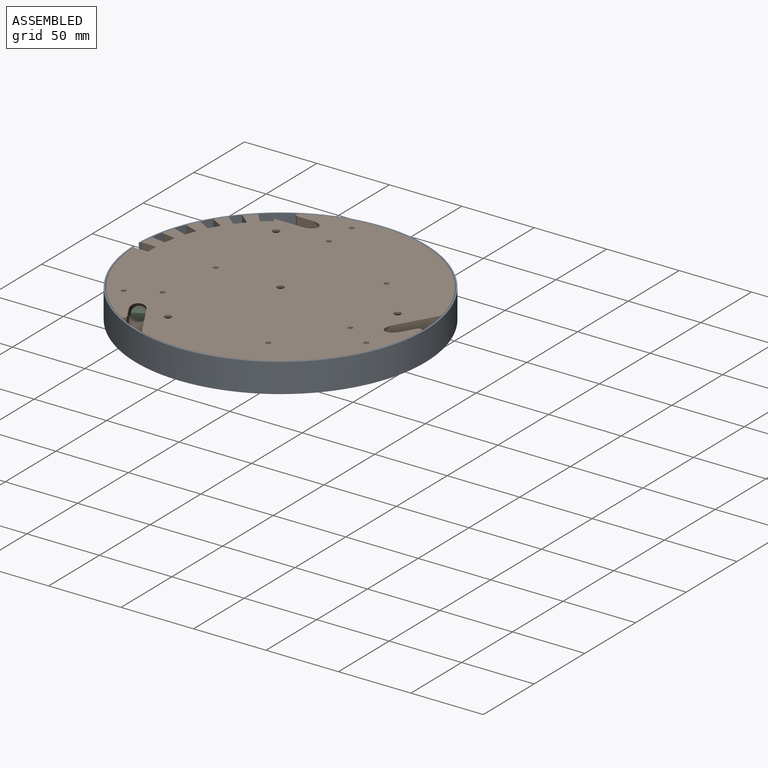
[diagram: assembled view]
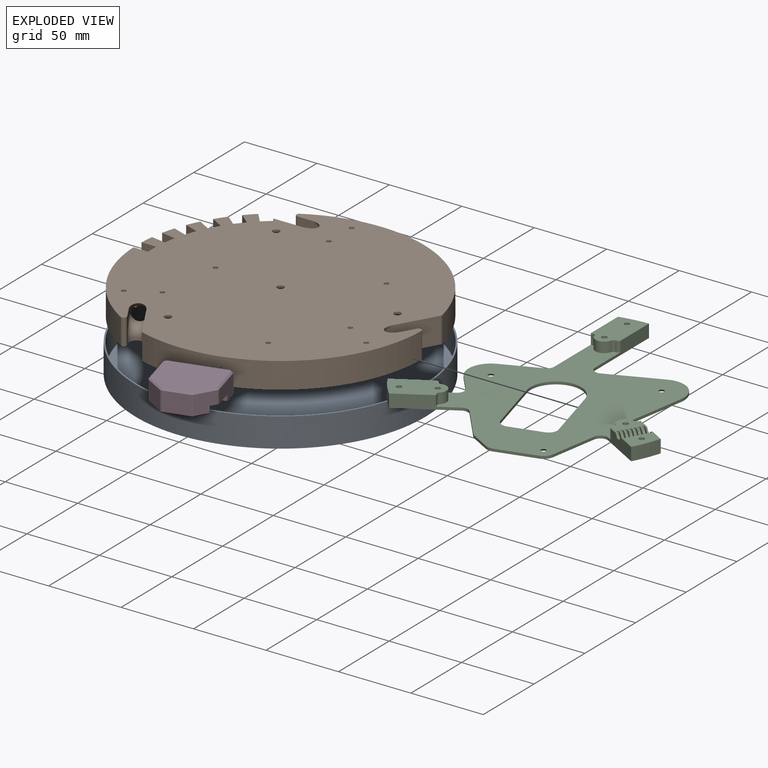
[diagram: exploded view]
GUIDED TOUR — FREECAD ASSEMBLY "CircularBase"

This assembly has 4 components, labeled P0..P3 below (a component is one placed body or linked part; the same part can appear more than once), held together by 0 modeled joints plus 5 derived contact edges. A joint is a constraint between two components; its type names the relative motion it leaves free:
  CONTACT — a derived adjacency edge — the two components touch in the source model (clearance under 2% of the assembly's diagonal); it is measured from the geometry, not a modeled constraint.
Axis/direction vectors are unit vectors and 'through' points are millimeter coordinates, both in the assembly's world frame.

MATES
  1. CONTACT "contact_0_1": P0 <-> P1, contact direction (0.000, 0.000, 1.000) through (81.83, -13.75, -18.05) mm (derived from contact, not a modeled constraint)
  2. CONTACT "contact_0_2": P0 <-> P2, contact direction (0.000, 0.000, 1.000) through (-82.91, -50.74, -18.05) mm (derived from contact, not a modeled constraint)
  3. CONTACT "contact_1_2": P1 <-> P2, contact direction (1.000, 0.000, 0.000) through (-54.24, -37.77, -9.00) mm (derived from contact, not a modeled constraint)
  4. CONTACT "contact_1_3": P1 <-> P3, contact direction (0.191, -0.981, 0.047) through (28.45, -69.68, -15.83) mm (derived from contact, not a modeled constraint)
  5. CONTACT "contact_2_3": P2 <-> P3, contact direction (0.000, 0.000, 1.000) through (24.28, -44.42, -15.70) mm (derived from contact, not a modeled constraint)

ASSEMBLY ORDER
  1. P1 — the base component [order heuristic]
  2. P0 [order heuristic]
  3. P2 [order heuristic]
  4. P3 [order heuristic]
Order-tag legend:
  [order heuristic] — this assembly is geometrically interlocked (no collision-free removal order exists), so components are listed in mate-graph order; insertion feasibility is not verified.

Of the 4 components, 4 carry a construction recipe — the FreeCAD feature program (sketches with constraints, then the solid features that consume them) that regenerates the part from scratch, quoted from this document or from the linked companion document it references; the rest are supplied as boundary geometry only. The tour below walks the components in assembly order: each is shown spotlighted twice — in the assembled view, then in the exploded view, where a leader line traces a displaced component back to its assembled socket (components that stay in place when exploded have no leader line; saturated green if recipe-attached, orange if geometry-only; every other component desaturated gray) — followed by its recipe or geometry summary and the mates that hold it.
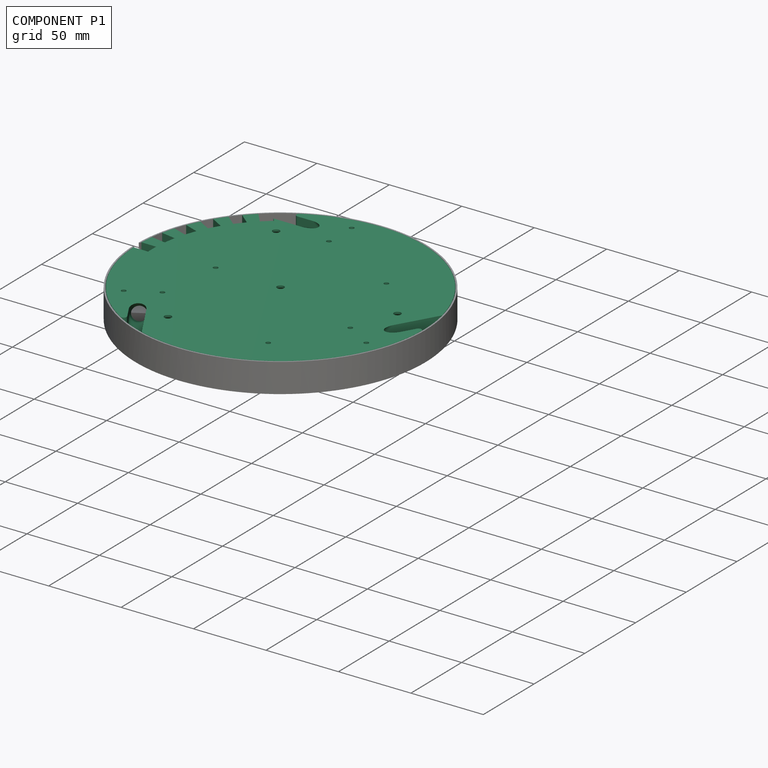
[diagram: component P1 — assembled]
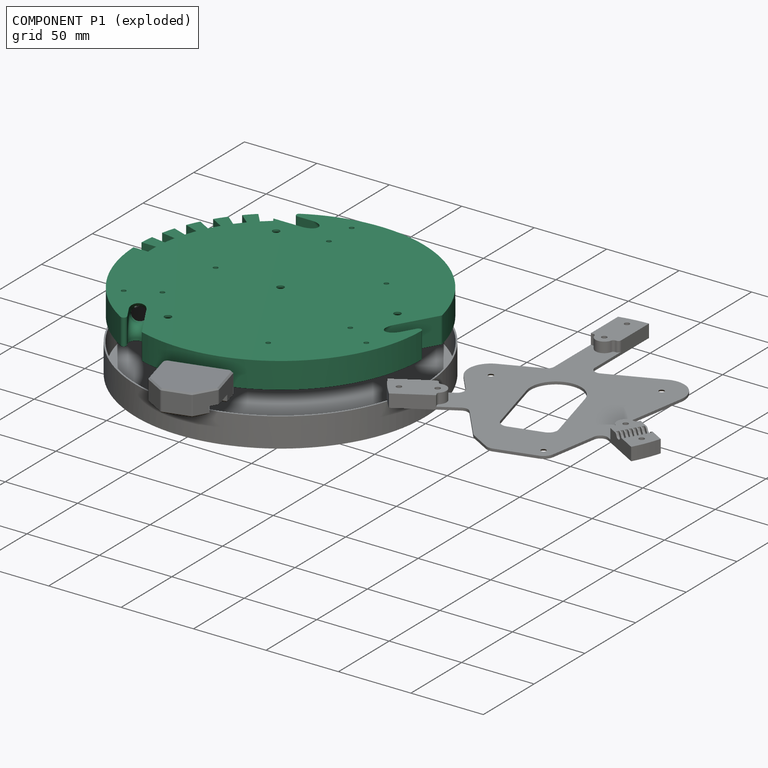
[diagram: component P1 — exploded]
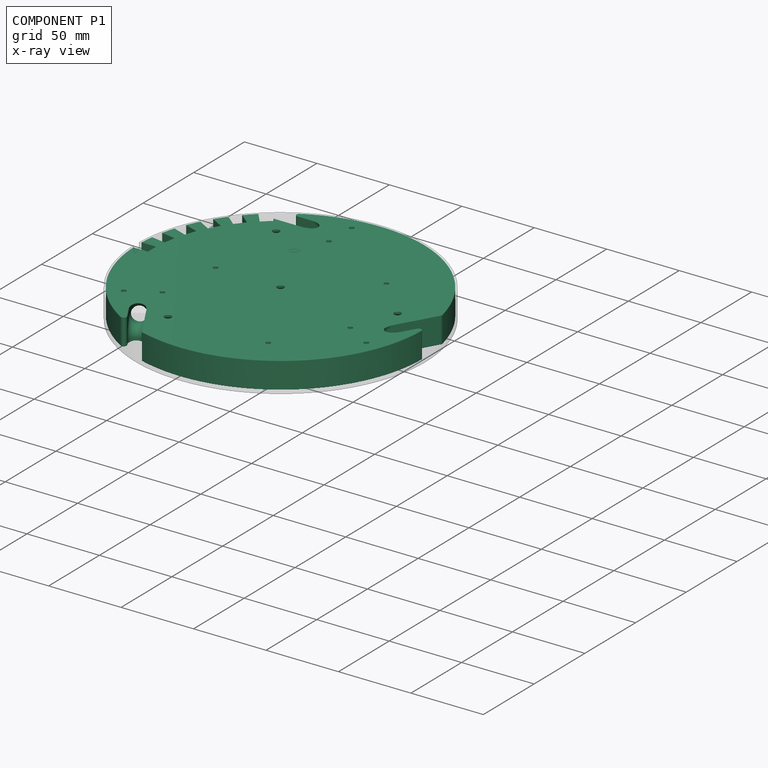
[diagram: component P1 — x-ray view]
COMPONENT P1 — recipe-attached ("Base", modeled in this document).
Held by: resting contact with P0 (derived edge); resting contact with P2 (derived edge); resting contact with P3 (derived edge).
Construction recipe (the document's own serialized feature program — sketch geometry with constraints, then the solid features built on it; lengths are millimeters unless a unit is written):

FEATURE [Sketcher::SketchObject] Sketch012
  ArcFitTolerance = 1e-06
  AttachmentSupport = -> [XY_Plane004]
  FullyConstrained = true
  MakeInternals = false
  MapMode = 5
  sketch-geometry (1):
    g0: Circle CenterX=0 CenterY=0 CenterZ=0 NormalX=0 NormalY=0 NormalZ=1 AngleXU=0 Radius=98.8
  constraints (2):
    c: Diameter(g0) = 197.6
    c: Coincident(g0,g-1)
FEATURE [PartDesign::Pad] Pad009
  Direction = (0,0,1)
  Length = 4
  Length2 = 10
  Profile = -> Sketch012
  ReferenceAxis = -> Sketch012 [N_Axis]
  Refine = true
  Reversed = true
  Suppressed = false
  Type = 0
FEATURE [Sketcher::SketchObject] Sketch013
  ArcFitTolerance = 1e-06
  AttachmentOffset = pos=(90,0,0) rot=(0,1,0;1.0472rad)
  AttachmentSupport = -> [XZ_Plane004]
  FullyConstrained = false
  MakeInternals = false
  MapMode = 5
  Placement = pos=(90,0,0) rot=(0.774597,0.447214,0.447214;1.82348rad)
  expr: Constraints[8] = 5 mm
  expr: Constraints[9] = 4 mm + 5 mm
  sketch-geometry (12):
    g0: LineSegment StartX=0 StartY=-18 StartZ=0 EndX=0 EndY=-16 EndZ=0
    g1: ArcOfCircle CenterX=-11 CenterY=-16 CenterZ=0 NormalX=0 NormalY=0 NormalZ=1 AngleXU=0 Radius=11 StartAngle=0 EndAngle=2.24086
    g2: ArcOfCircle CenterX=-22.4891 CenterY=-1.5 CenterZ=0 NormalX=0 NormalY=0 NormalZ=1 AngleXU=0 Radius=7.5 StartAngle=4.71239 EndAngle=5.38245
    g3: LineSegment StartX=-22.4891 StartY=-9 StartZ=0 EndX=-42.4891 EndY=-9 EndZ=0
    g4: LineSegment StartX=0 StartY=-18 StartZ=0 EndX=36.1215 EndY=-18 EndZ=0
    g5: LineSegment StartX=36.1215 StartY=-18 StartZ=0 EndX=35.1191 EndY=0 EndZ=0
    g6: LineSegment StartX=35.1191 StartY=0 StartZ=0 EndX=-8.51939 EndY=-2.7e-15 EndZ=0
    g7: LineSegment StartX=-17.8314 StartY=-7.37838 StartZ=0 EndX=-8.51939 EndY=-2.7e-15 EndZ=0
    g8: LineSegment StartX=-42.4891 StartY=-18 StartZ=0 EndX=-42.4891 EndY=-10 EndZ=0
    g9: LineSegment StartX=-22 StartY=-10 StartZ=0 EndX=-42.4891 EndY=-10 EndZ=0
    g10: LineSegment StartX=-22 StartY=-10 StartZ=0 EndX=-22 EndY=-18 EndZ=0
    g11: LineSegment StartX=-22 StartY=-18 StartZ=0 EndX=-42.4891 EndY=-18 EndZ=0
  constraints (32):
    c: Vertical(g0)
    c: Horizontal(g3)
    c: Distance(g0,g0) = 2
    c: Tangent(g3,g2) = 1.5708
    c: DistanceX(g3,g3) = 20
    c: DistanceY(g0,g-1) = 18
    c: PointOnObject(g0,g-2)
    c: Diameter(g2) = 15
    c: Distance(g1,g-1) = 5
    c: DistanceY(g0,g3) = 9
    c: Tangent(g0,g1) = -1.5708
    c: Tangent(g2,g1) = 1.5708
    c: Coincident(g4,g0)
    c: Horizontal(g4)
    c: Coincident(g5,g4)
    c: PointOnObject(g5,g-1)
    c: Coincident(g6,g5)
    c: PointOnObject(g6,g-1)
    c: Coincident(g7,g6)
    c: Tangent(g7,g1) = 1.5708
    c: Vertical(g8)
    c: PointOnObject(g3,g8)
    c: DistanceY(g8,g3) = 1
    c: Coincident(g9,g8)
    c: Horizontal(g9)
    c: Coincident(g11,g10)
    c: Coincident(g11,g8)
    c: Horizontal(g11)
    c: Vertical(g10)
    c: PointOnObject(g0,g11)
    c: Coincident(g9,g10)
    c: DistanceX(g10,g0) = 22
FEATURE [Sketcher::SketchObject] Sketch014
  ArcFitTolerance = 1e-06
  AttachmentSupport = -> [Pad009]
  ExternalGeometry = -> [Pad009,Sketch013]
  FullyConstrained = true
  MakeInternals = false
  MapMode = 5
  Placement = pos=(0,0,-4) rot=(1,0,0;3.14159rad)
  sketch-geometry (13):
    g0: LineSegment StartX=58.3631 StartY=30.7967 StartZ=0 EndX=60.4854 EndY=27.1208 EndZ=0
    g1: LineSegment StartX=84.1922 StartY=45.7091 StartZ=0 EndX=58.3631 EndY=30.7967 EndZ=0
    g2: ArcOfCircle CenterX=0 CenterY=0 CenterZ=0 NormalX=0 NormalY=0 NormalZ=1 AngleXU=0 Radius=95.8 StartAngle=0.497386 EndAngle=1.80639
    g3: ArcOfCircle CenterX=63.4854 CenterY=21.9246 CenterZ=0 NormalX=0 NormalY=0 NormalZ=1 AngleXU=0 Radius=6 StartAngle=2.0944 EndAngle=5.23599
    g4: LineSegment StartX=66.4854 StartY=16.7285 StartZ=0 EndX=93.8944 EndY=-30.7453 EndZ=0
    g5: Circle [constr] CenterX=63.4854 CenterY=21.9246 CenterZ=0 NormalX=0 NormalY=0 NormalZ=1 AngleXU=0 Radius=1.5
    g6: LineSegment [constr] StartX=73.8777 StartY=27.9246 StartZ=0 EndX=63.4854 EndY=21.9246 EndZ=0
    g7: ArcOfCircle CenterX=0 CenterY=0 CenterZ=0 NormalX=0 NormalY=0 NormalZ=1 AngleXU=0 Radius=98.8 StartAngle=5.96674 EndAngle=8.06114
    g8: LineSegment StartX=-20.321 StartY=96.6876 StartZ=0 EndX=-22.3613 EndY=93.1537 EndZ=0
    g9: LineSegment [constr] StartX=0 StartY=0 StartZ=0 EndX=93.8944 EndY=-30.7453 EndZ=0
    g10: LineSegment [constr] StartX=0 StartY=0 StartZ=0 EndX=-20.321 EndY=96.6876 EndZ=0
    g11: LineSegment [constr] StartX=0 StartY=0 StartZ=0 EndX=58.3631 EndY=30.7967 EndZ=0
    g12: LineSegment [constr] StartX=0 StartY=0 StartZ=0 EndX=-55.8523 EndY=35.1456 EndZ=0
  constraints (36):
    c: Coincident(g1,g0)
    c: Perpendicular(g-4,g1)
    c: Perpendicular(g0,g1)
    c: Coincident(g1,g2)
    c: Coincident(g2,g-1)
    c: PointOnObject(g-5,g1)
    c: Distance(g0,g-5) = 12
    c: PointOnObject(g3,g0)
    c: PointOnObject(g3,g0)
    c: Coincident(g3,g0)
    c: Coincident(g4,g3)
    c: Perpendicular(g3,g4)
    c: Radius(g3) = 6
    c: Coincident(g5,g3)
    c: Diameter(g5) = 3
    c: Symmetric(g-5,g-5,g6)
    c: Coincident(g6,g3)
    c: Perpendicular(g-5,g6)
    c: Coincident(g7,g2)
    c: Coincident(g7,g4)
    c: PointOnObject(g4,g-3)
    c: Coincident(g8,g7)
    c: Coincident(g8,g2)
    c: Coincident(g9,g2)
    c: Coincident(g9,g4)
    c: Angle(g4,g9) = 0.730755  'Reference'
    c: Coincident(g10,g2)
    c: Coincident(g10,g7)
    c: Angle(g9,g10) = 2.0944
    c: Distance(g1,g-3) = 3
    c: Coincident(g11,g2)
    c: Coincident(g11,g0)
    c: Coincident(g12,g2)
    c: Angle(g11,g12) = 2.0944
    c: Equal(g11,g12)
    c: PointOnObject(g12,g8)
FEATURE [PartDesign::Pad] Pad010
  BaseFeature = -> Pad009
  Direction = (0,0,-1)
  Length = 14
  Length2 = 10
  Profile = -> Sketch014
  ReferenceAxis = -> Sketch014 [N_Axis]
  Refine = true
  Suppressed = false
  Type = 0
  UpToShape = -> [Sketch013]
FEATURE [Sketcher::SketchObject] Sketch015
  ArcFitTolerance = 1e-06
  AttachmentSupport = -> [Pad010]
  ExternalGeometry = -> [Sketch013]
  FullyConstrained = true
  MakeInternals = false
  MapMode = 5
  Placement = pos=(1.25544,2.17448,0) rot=(0.935113,-0.250563,-0.250563;1.63783rad)
  sketch-geometry (1):
    g0: Circle CenterX=77.9423 CenterY=-9 CenterZ=0 NormalX=0 NormalY=0 NormalZ=1 AngleXU=0 Radius=5
  constraints (2):
    c: Coincident(g0,g-3)
    c: Diameter(g0) = 10
FEATURE [PartDesign::SubtractivePipe] SubtractivePipe004
  AuxilleryCurvelinear = true
  AuxillerySpineTangent = false
  BaseFeature = -> Pad010
  Binormal = (0,0,0)
  Mode = 0
  Profile = -> Sketch015
  Refine = true
  Spine = -> Sketch013 [Edge8,Edge7,Edge1]
  SpineTangent = false
  Suppressed = false
  Transformation = 0
  Transition = 0
FEATURE [PartDesign::SubtractivePipe] SubtractivePipe005
  AuxilleryCurvelinear = true
  AuxillerySpineTangent = false
  BaseFeature = -> SubtractivePipe004
  Binormal = (0,0,0)
  Mode = 0
  Profile = -> Sketch015
  Refine = true
  Spine = -> Sketch013 [Edge8,Edge7,Edge6,Edge5]
  SpineTangent = false
  Suppressed = false
  Transformation = 0
  Transition = 0
FEATURE [PartDesign::Pocket] Pocket019
  BaseFeature = -> SubtractivePipe005
  Direction = (-0.866025,0.5,-1e-16)
  Length = 10
  Length2 = 5
  Midplane = true
  Profile = -> Sketch013 [Edge1,Edge6,Edge2,Edge5,Edge4,Edge3]
  ReferenceAxis = -> Sketch013 [N_Axis]
  Refine = true
  Suppressed = false
  Type = 0
  expr: Length = 10
FEATURE [Sketcher::SketchObject] Sketch019
  ArcFitTolerance = 1e-06
  AttachmentSupport = -> [Pocket019]
  ExternalGeometry = -> [Pocket019]
  FullyConstrained = true
  MakeInternals = false
  MapMode = 5
  Placement = pos=(0,0,-18) rot=(1,0,0;3.14159rad)
  sketch-geometry (6):
    g0: LineSegment StartX=58.3631 StartY=30.7967 StartZ=0 EndX=84.1922 EndY=45.7091 EndZ=0
    g1: LineSegment StartX=68.3631 StartY=13.4762 StartZ=0 EndX=91.8977 EndY=27.0638 EndZ=0
    g2: ArcOfCircle CenterX=0 CenterY=0 CenterZ=0 NormalX=0 NormalY=0 NormalZ=1 AngleXU=0 Radius=95.8 StartAngle=0.286403 EndAngle=0.497386
    g3: ArcOfCircle CenterX=63.4854 CenterY=21.9246 CenterZ=0 NormalX=0 NormalY=0 NormalZ=1 AngleXU=0 Radius=6 StartAngle=2.09439 EndAngle=5.23599
    g4: LineSegment StartX=58.3631 StartY=30.7967 StartZ=0 EndX=60.4854 EndY=27.1208 EndZ=0
    g5: LineSegment StartX=66.4854 StartY=16.7285 StartZ=0 EndX=68.3631 EndY=13.4762 EndZ=0
  constraints (15):
    c: Coincident(g2,g-1)
    c: Coincident(g2,g1)
    c: Coincident(g2,g0)
    c: Coincident(g4,g0)
    c: Coincident(g4,g3)
    c: Coincident(g5,g3)
    c: Coincident(g5,g1)
    c: Coincident(g0,g-4)
    c: Coincident(g3,g-5)
    c: Coincident(g0,g-4)
    c: Coincident(g3,g-6)
    c: PointOnObject(g1,g-6)
    c: Equal(g-5,g3)
    c: PointOnObject(g-7,g1)
    c: PointOnObject(g-7,g1)
FEATURE [PartDesign::Pocket] Pocket
  BaseFeature = -> Pocket019
  Direction = (0,0,1)
  Length = 9
  Length2 = 5
  Profile = -> Sketch019
  ReferenceAxis = -> Sketch019 [N_Axis]
  Refine = true
  Suppressed = false
  Type = 0
  expr: Length = 4 mm + 5 mm
FEATURE [Sketcher::SketchObject] Sketch018
  ArcFitTolerance = 1e-06
  AttachmentSupport = -> [Pocket]
  ExternalGeometry = -> [Pocket]
  FullyConstrained = true
  MakeInternals = false
  MapMode = 5
  Placement = pos=(0,0,-4) rot=(1,0,0;3.14159rad)
  sketch-geometry (3):
    g0: LineSegment [constr] StartX=94.3301 StartY=2.5 StartZ=0 EndX=74.4115 EndY=-9 EndZ=0
    g1: Circle CenterX=74.4115 CenterY=-9 CenterZ=0 NormalX=0 NormalY=0 NormalZ=1 AngleXU=0 Radius=6
    g2: Circle CenterX=0 CenterY=0 CenterZ=0 NormalX=0 NormalY=0 NormalZ=1 AngleXU=0 Radius=6
  constraints (7):
    c: Diameter(g1) = 12
    c: Coincident(g1,g0)
    c: Coincident(g0,g-3)
    c: PointOnObject(g-3,g0)
    c: Coincident(g2,g-1)
    c: Equal(g2,g1)
    c: Tangent(g1,g-4)
FEATURE [Sketcher::SketchObject] Sketch020
  ArcFitTolerance = 1e-06
  AttachmentSupport = -> [Pocket]
  ExternalGeometry = -> [Pocket]
  FullyConstrained = false
  MakeInternals = false
  MapMode = 5
  Placement = pos=(0,0,-9) rot=(1,0,0;3.14159rad)
  sketch-geometry (5):
    g0: GeomPoint X=68.4685 Y=25.2665 Z=0
    g1: GeomPoint X=78.0856 Y=30.6364 Z=0
    g2: LineSegment [constr] StartX=78.0856 StartY=30.6364 StartZ=0 EndX=82.4157 EndY=33.1364 EndZ=0
    g3: Circle CenterX=63.4854 CenterY=21.9246 CenterZ=0 NormalX=0 NormalY=0 NormalZ=1 AngleXU=0 Radius=1.5
    g4: Circle CenterX=82.4157 CenterY=33.1364 CenterZ=0 NormalX=0 NormalY=0 NormalZ=1 AngleXU=0 Radius=1.5
  constraints (7):
    c: Coincident(g2,g1)
    c: Coincident(g4,g2)
    c: Equal(g4,g3)
    c: Symmetric(g-3,g-3,g1)
    c: Perpendicular(g-3,g2)
    c: Coincident(g-4,g3)
    c: Distance(g2,g2) = 5
FEATURE [PartDesign::Hole] Hole
  BaseFeature = -> Pocket
  CustomThreadClearance = 0
  Depth = 565.656
  DepthType = 1
  Diameter = 3.2
  DrillForDepth = false
  DrillPoint = 1
  DrillPointAngle = 118
  HoleCutCountersinkAngle = 90
  HoleCutCustomValues = false
  HoleCutDepth = 0
  HoleCutDiameter = 6.1
  HoleCutType = 0
  ModelThread = false
  Profile = -> Sketch020
  Refine = true
  Suppressed = false
  Tapered = false
  TaperedAngle = 90
  ThreadClass = 0
  ThreadDepth = 565.656
  ThreadDepthType = 0
  ThreadDirection = 0
  ThreadFit = 1
  ThreadSize = 9
  ThreadType = 1
  Threaded = false
  UseCustomThreadClearance = false
FEATURE [Sketcher::SketchObject] Sketch028
  ArcFitTolerance = 1e-06
  AttachmentOffset = pos=(0,2,-100) rot=(1,0,0;0.174533rad)
  AttachmentSupport = -> [YZ_Plane004]
  FullyConstrained = true
  MakeInternals = false
  MapMode = 5
  Placement = pos=(-100,0,2) rot=(0.60812,0.60812,0.510274;2.19793rad)
  sketch-geometry (4):
    g0: LineSegment StartX=-4 StartY=0 StartZ=0 EndX=-4 EndY=-10 EndZ=0
    g1: LineSegment StartX=-4 StartY=-10 StartZ=0 EndX=4 EndY=-10 EndZ=0
    g2: LineSegment StartX=4 StartY=-10 StartZ=0 EndX=4 EndY=0 EndZ=0
    g3: LineSegment StartX=4 StartY=0 StartZ=0 EndX=-4 EndY=0 EndZ=0
  constraints (11):
    c: Coincident(g0,g1)
    c: Coincident(g1,g2)
    c: Coincident(g2,g3)
    c: Vertical(g0)
    c: Vertical(g2)
    c: Horizontal(g1)
    c: Horizontal(g3)
    c: Distance(g0,g2) = 8
    c: Distance(g1,g3) = 10
    c: Coincident(g3,g0)
    c: Symmetric(g0,g2,g-1)
FEATURE [PartDesign::SubShapeBinder] Binder
  BindCopyOnChange = 0
  BindMode = 0
  ClaimChildren = false
  Context = -> Assembly [Body003.Binder.]
  Fuse = false
  MakeFace = true
  Offset = 0.3
  OffsetFill = false
  OffsetIntersection = false
  OffsetJoinType = 1
  OffsetOpenResult = false
  PartialLoad = false
  Refine = true
  Relative = true
  Support = -> [Housing[Pocket002.Edge101,Pocket002.Edge91,Pocket002.Edge95,Pocket002.Edge106,Pocket002.Edge65,Pocket002.Edge73,Pocket002.Edge76,Pocket002.Edge81]]
  _Version = 2
FEATURE [PartDesign::SubShapeBinder] Binder011
  BindCopyOnChange = 0
  BindMode = 0
  ClaimChildren = false
  Context = -> Assembly [Body003.Binder011.]
  Fuse = false
  MakeFace = true
  Offset = 2
  OffsetFill = false
  OffsetIntersection = false
  OffsetJoinType = 1
  OffsetOpenResult = false
  PartialLoad = false
  Refine = true
  Relative = true
  Support = -> [Binder]
  _Version = 2
FEATURE [PartDesign::SubShapeBinder] Binder012
  BindCopyOnChange = 0
  BindMode = 0
  ClaimChildren = false
  Context = -> Assembly [Body003.Binder012.]
  Fuse = false
  MakeFace = true
  OffsetFill = false
  OffsetIntersection = false
  OffsetJoinType = 1
  OffsetOpenResult = false
  PartialLoad = false
  Refine = true
  Relative = true
  Support = -> [Housing[Pocket002.Face1]]
  _Version = 2
FEATURE [PartDesign::SubShapeBinder] Binder013
  BindCopyOnChange = 0
  BindMode = 0
  ClaimChildren = false
  Context = -> Assembly [Body003.Binder013.]
  Fuse = false
  MakeFace = true
  OffsetFill = false
  OffsetIntersection = false
  OffsetJoinType = 1
  OffsetOpenResult = false
  PartialLoad = false
  Refine = true
  Relative = true
  Support = -> [Housing[Pocket002.Face53]]
  _Version = 2
FEATURE [Sketcher::SketchObject] Sketch
  ArcFitTolerance = 1e-06
  AttachmentSupport = -> [Hole]
  ExternalGeometry = -> [Sketch013]
  FullyConstrained = true
  MakeInternals = false
  MapMode = 5
  Placement = pos=(0,0,-18) rot=(1,0,0;3.14159rad)
  sketch-geometry (1):
    g0: Circle CenterX=84 CenterY=10.3923 CenterZ=0 NormalX=0 NormalY=0 NormalZ=1 AngleXU=0 Radius=4
  constraints (3):
    c: Diameter(g0) = 8
    c: PointOnObject(g0,g-3)
    c: Distance(g-3,g0) = 12
FEATURE [PartDesign::Pocket] Pocket049
  BaseFeature = -> Hole
  Direction = (0,0,1)
  Length = 4
  Length2 = 5
  Profile = -> Sketch
  ReferenceAxis = -> Sketch [N_Axis]
  Refine = true
  Suppressed = false
  Type = 0
FEATURE [PartDesign::Fillet] Fillet
  Base = -> Pocket049 [Edge67,Edge66,Edge40,Edge10,Edge9]
  BaseFeature = -> Pocket049
  Radius = 2
  Refine = true
  SupportTransform = false
  Suppressed = false
  UseAllEdges = false
FEATURE [PartDesign::Hole] Hole006
  BaseFeature = -> Fillet
  CustomThreadClearance = 0
  Depth = 565.618
  DepthType = 1
  Diameter = 4.8
  DrillForDepth = false
  DrillPoint = 1
  DrillPointAngle = 118
  HoleCutCountersinkAngle = 90
  HoleCutCustomValues = false
  HoleCutDepth = 0
  HoleCutDiameter = 10
  HoleCutType = 2
  ModelThread = false
  Profile = -> Sketch018
  Refine = true
  Suppressed = false
  Tapered = false
  TaperedAngle = 90
  ThreadClass = 0
  ThreadDepth = 565.618
  ThreadDepthType = 0
  ThreadDirection = 0
  ThreadFit = 2
  ThreadSize = 11
  ThreadType = 1
  Threaded = false
  UseCustomThreadClearance = false
FEATURE [PartDesign::PolarPattern] PolarPattern
  Angle = 360
  Axis = -> Sketch014 [N_Axis]
  BaseFeature = -> Hole006
  Mode = 0
  Occurrences = 3
  Offset = 120
  Originals = -> [Pad010,SubtractivePipe004,SubtractivePipe005,Pocket019,Pocket,Hole,Pocket049,Fillet,Hole006]
  Refine = true
  Suppressed = false
  TransformMode = 0
FEATURE [PartDesign::Pocket] Pocket030
  BaseFeature = -> PolarPattern
  Direction = (-0.984808,0,0.173648)
  Length = 50
  Length2 = 5
  Profile = -> Sketch028
  ReferenceAxis = -> Sketch028 [N_Axis]
  Refine = true
  Reversed = true
  Suppressed = false
  Type = 0
FEATURE [PartDesign::PolarPattern] PolarPattern004
  Angle = 360
  Axis = -> Z_Axis004
  BaseFeature = -> Pocket030
  Mode = 1
  Occurrences = 6
  Offset = 10
  Originals = -> [Pocket030]
  Refine = true
  Reversed = true
  Suppressed = false
  TransformMode = 0
FEATURE [PartDesign::Pad] Pad022
  BaseFeature = -> PolarPattern004
  Direction = (8.74228e-08,3.6e-15,1)
  Length = 10
  Length2 = 10
  Profile = -> Binder011
  Refine = true
  Suppressed = false
  Type = 3
  UpToFace = -> Binder012 [Face1]
FEATURE [PartDesign::Pocket] Pocket046
  BaseFeature = -> Pad022
  Direction = (8.74228e-08,3.6e-15,1)
  Length = 5
  Length2 = 5
  Profile = -> Binder
  Refine = true
  Reversed = true
  Suppressed = false
  Type = 1
FEATURE [PartDesign::Pocket] Pocket047
  BaseFeature = -> Pocket046
  Direction = (8.74228e-08,3.6e-15,1)
  Length = 0
  Length2 = 5
  Profile = -> Pocket046 [Face142]
  Refine = true
  Suppressed = false
  Type = 3
  UpToFace = -> Binder013 [Face1]
FEATURE [Sketcher::SketchObject] Sketch034
  ArcFitTolerance = 1e-06
  AttachmentSupport = -> [Pocket047]
  ExternalGeometry = -> [Pocket047]
  FullyConstrained = true
  MakeInternals = false
  MapMode = 5
  Placement = pos=(-1.41625e-06,-6.38e-14,-16.2) rot=(1,0,0;3.14159rad)
  sketch-geometry (5):
    g0: LineSegment StartX=-6.47379 StartY=37.6587 StartZ=0 EndX=24.4358 EndY=29.3765 EndZ=0
    g1: LineSegment StartX=24.4358 StartY=29.3765 StartZ=0 EndX=24.9535 EndY=31.3084 EndZ=0
    g2: LineSegment StartX=24.9535 StartY=31.3084 StartZ=0 EndX=-5.95616 EndY=39.5906 EndZ=0
    g3: LineSegment StartX=-5.95616 StartY=39.5906 StartZ=0 EndX=-6.47379 EndY=37.6587 EndZ=0
    g4: GeomPoint [constr] X=8.98102 Y=33.5176 Z=0
  constraints (12):
    c: Coincident(g0,g1)
    c: Coincident(g1,g2)
    c: Coincident(g2,g3)
    c: Coincident(g3,g0)
    c: PointOnObject(g0,g-4)
    c: PointOnObject(g2,g-3)
    c: PointOnObject(g1,g-3)
    c: Perpendicular(g1,g0)
    c: Perpendicular(g0,g3)
    c: Symmetric(g0,g0,g4)
    c: Symmetric(g-4,g-4,g4)
    c: Distance(g0,g0) = 32
FEATURE [PartDesign::Pocket] Pocket048
  BaseFeature = -> Pocket047
  Direction = (8.74228e-08,3.9e-15,1)
  Length = 0
  Length2 = 5
  Profile = -> Sketch034
  ReferenceAxis = -> Sketch034 [N_Axis]
  Refine = true
  Suppressed = false
  Type = 3
  UpToFace = -> Pocket047 [Face2]
FEATURE [Sketcher::SketchObject] Sketch037
  ArcFitTolerance = 1e-06
  AttachmentSupport = -> [Pocket048]
  ExternalGeometry = -> [Pocket048]
  FullyConstrained = true
  MakeInternals = false
  MapMode = 5
  Placement = pos=(-1.41625e-06,-6.38e-14,-16.2) rot=(1,0,0;3.14159rad)
  sketch-geometry (7):
    g0: Circle CenterX=37.02 CenterY=65.0561 CenterZ=0 NormalX=0 NormalY=0 NormalZ=1 AngleXU=0 Radius=4.67918
    g1: LineSegment StartX=28.331 StartY=72.2285 StartZ=0 EndX=38.231 EndY=69.5758 EndZ=0
    g2: LineSegment StartX=38.887 StartY=53.945 StartZ=0 EndX=41.5397 EndY=63.845 EndZ=0
    g3: ArcOfCircle CenterX=37.02 CenterY=65.0561 CenterZ=0 NormalX=0 NormalY=0 NormalZ=1 AngleXU=0 Radius=4.67918 StartAngle=6.02139 EndAngle=7.59218
    g4: LineSegment StartX=30.942 StartY=70.225 StartZ=0 EndX=38.4575 EndY=57.2079 EndZ=0
    g5: ArcOfCircle CenterX=27.2181 CenterY=68.075 CenterZ=0 NormalX=0 NormalY=0 NormalZ=1 AngleXU=0 Radius=4.3 StartAngle=0.523599 EndAngle=1.309
    g6: ArcOfCircle CenterX=34.7336 CenterY=55.0579 CenterZ=0 NormalX=0 NormalY=0 NormalZ=1 AngleXU=0 Radius=4.3 StartAngle=6.02139 EndAngle=6.80678
  constraints (15):
    c: Tangent(g3,g2) = -1.5708
    c: Tangent(g3,g1) = 1.5708
    c: Equal(g3,g0)
    c: Coincident(g3,g0)
    c: Tangent(g0,g-3)
    c: Coincident(g6,g4)
    c: Equal(g6,g-5)
    c: Coincident(g4,g-5)
    c: Coincident(g2,g-5)
    c: Coincident(g5,g4)
    c: Equal(g-4,g5)
    c: Coincident(g4,g-4)
    c: Tangent(g5,g1) = 1.5708
    c: Tangent(g6,g2) = -1.5708
    c: Coincident(g-4,g1)
FEATURE [Sketcher::SketchObject] Sketch038
  ArcFitTolerance = 1e-06
  AttachmentSupport = -> [Pocket048]
  ExternalGeometry = -> [Sketch037]
  FullyConstrained = true
  MakeInternals = false
  MapMode = 5
  Placement = pos=(0,0,-4) rot=(1,0,0;3.14159rad)
  sketch-geometry (6):
    g0: Circle CenterX=-45 CenterY=-0.281238 CenterZ=0 NormalX=0 NormalY=0 NormalZ=1 AngleXU=0 Radius=12.5
    g1: Circle CenterX=46.2028 CenterY=-38.2793 CenterZ=0 NormalX=0 NormalY=0 NormalZ=1 AngleXU=0 Radius=12.5
    g2: LineSegment [constr] StartX=-45 StartY=-0.281238 StartZ=0 EndX=0 EndY=0 EndZ=0
    g3: LineSegment [constr] StartX=0 StartY=0 StartZ=0 EndX=46.2028 EndY=-38.2793 EndZ=0
    g4: LineSegment [constr] StartX=0 StartY=0 StartZ=0 EndX=37.02 EndY=65.0561 EndZ=0
    g5: LineSegment StartX=-45 StartY=-0.281238 StartZ=0 EndX=46.2028 EndY=-38.2793 EndZ=0
  constraints (14):
    c: Coincident(g2,g0)
    c: Coincident(g2,g-1)
    c: Coincident(g3,g2)
    c: Coincident(g3,g1)
    c: Coincident(g4,g2)
    c: Coincident(g4,g-3)
    c: Angle(g3,g4) = 1.74533
    c: Angle(g4,g2) = 2.0944
    c: Equal(g1,g0)
    c: Diameter(g0) = 25
    c: DistanceX(g2,g2) = 45
    c: Distance(g3,g3) = 60
    c: Coincident(g5,g0)
    c: Coincident(g5,g1)
FEATURE [PartDesign::Pad] Pad023
  BaseFeature = -> Pocket048
  Direction = (-8.74228e-08,-3.9e-15,-1)
  Length = 10
  Length2 = 10
  Profile = -> Sketch037 [Edge5,Edge6,Edge7,Edge2,Edge3,Edge4]
  ReferenceAxis = -> Sketch037 [N_Axis]
  Refine = true
  Reversed = true
  Suppressed = false
  Type = 3
  UpToFace = -> Pocket048 [Face116]
FEATURE [PartDesign::Fillet] Fillet001
  Base = -> Pad023 [Edge296,Edge282,Edge283,Edge268]
  BaseFeature = -> Pad023
  Radius = 2
  Refine = true
  SupportTransform = false
  Suppressed = false
  UseAllEdges = false
FEATURE [Sketcher::SketchObject] Sketch039
  ArcFitTolerance = 1e-06
  AttachmentSupport = -> [Fillet001]
  ExternalGeometry = -> [Fillet001]
  FullyConstrained = true
  MakeInternals = false
  MapMode = 5
  Placement = pos=(-15.4548,-4.1411,1.3511e-06) rot=(0.476905,0.621515,0.621515;2.25159rad)
  sketch-geometry (4):
    g0: LineSegment StartX=-34.7 StartY=-16.2 StartZ=0 EndX=-31.7 EndY=-16.2 EndZ=0
    g1: LineSegment StartX=-31.7 StartY=-16.2 StartZ=0 EndX=-31.7 EndY=-15.2 EndZ=0
    g2: LineSegment StartX=-34.7 StartY=-10.6174 StartZ=0 EndX=-34.7 EndY=-16.2 EndZ=0
    g3: ArcOfCircle CenterX=-29.7 CenterY=-10.6174 CenterZ=0 NormalX=0 NormalY=0 NormalZ=1 AngleXU=0 Radius=5 StartAngle=3.14159 EndAngle=4.30087
  constraints (11):
    c: Coincident(g0,g1)
    c: Coincident(g2,g0)
    c: Horizontal(g0)
    c: Vertical(g1)
    c: Vertical(g2)
    c: Distance(g1,g2) = 3
    c: Coincident(g0,g-3)
    c: Distance(g1,g1) = 1
    c: Coincident(g3,g1)
    c: Tangent(g3,g2) = -1.5708
    c: Diameter(g3) = 10
FEATURE [PartDesign::AdditivePipe] AdditivePipe
  AuxilleryCurvelinear = true
  AuxillerySpineTangent = false
  BaseFeature = -> Fillet001
  Binormal = (0,0,0)
  Mode = 0
  Profile = -> Sketch039
  Refine = true
  Spine = -> Fillet001 [Edge77,Edge81,Edge85,Edge93,Edge97,Edge101,Edge105,Edge109,Edge113,Edge116,Edge115,Edge111,Edge107,Edge103,Edge98]
  SpineTangent = false
  Suppressed = false
  Transformation = 0
  Transition = 0
FEATURE [PartDesign::Plane] DatumPlane
  AttachmentOffset = pos=(0,0,0) rot=(0,1,0;1.5708rad)
  AttachmentSupport = -> [Sketch038]
  Length = 61.4354
  MapMode = 45
  Placement = pos=(0.6014,19.2802,-4) rot=(-0.639598,0.426413,0.639598;2.33546rad)
  ResizeMode = 0
  Width = 76.8192
FEATURE [Sketcher::SketchObject] Sketch044
  ArcFitTolerance = 1e-06
  AttachmentSupport = -> [DatumPlane]
  ExternalGeometry = -> [Pocket048,Sketch038]
  FullyConstrained = true
  MakeInternals = false
  MapMode = 5
  Placement = pos=(0.6014,19.2802,-4) rot=(0.639598,-0.426413,-0.639598;3.94773rad)
  sketch-geometry (6):
    g0: LineSegment StartX=-8.4e-15 StartY=49.4009 StartZ=0 EndX=12.2 EndY=49.4009 EndZ=0
    g1: LineSegment StartX=-8.4e-15 StartY=49.4009 StartZ=0 EndX=-6.2e-15 EndY=36.9009 EndZ=0
    g2: LineSegment StartX=-6.2e-15 StartY=36.9009 StartZ=0 EndX=6.61742 EndY=36.9009 EndZ=0
    g3: LineSegment StartX=12.2 StartY=49.4009 StartZ=0 EndX=12.2 EndY=33.9009 EndZ=0
    g4: LineSegment StartX=12.2 StartY=33.9009 StartZ=0 EndX=11.2 EndY=33.9009 EndZ=0
    g5: ArcOfCircle CenterX=6.61742 CenterY=31.9009 CenterZ=0 NormalX=0 NormalY=0 NormalZ=1 AngleXU=0 Radius=5 StartAngle=0.411517 EndAngle=1.5708
  constraints (16):
    c: Symmetric(g-4,g-4,g0)
    c: PointOnObject(g0,g-3)
    c: Perpendicular(g0,g-4)
    c: Coincident(g1,g0)
    c: Coincident(g1,g-4)
    c: Coincident(g2,g1)
    c: Horizontal(g2)
    c: Coincident(g3,g0)
    c: Vertical(g3)
    c: Coincident(g4,g3)
    c: Coincident(g5,g4)
    c: Perpendicular(g4,g3)
    c: Tangent(g5,g2) = 1.5708
    c: Diameter(g5) = 10
    c: DistanceY(g3,g2) = 3
    c: DistanceX(g4,g4) = 1
FEATURE [PartDesign::Hole] Hole004
  BaseFeature = -> AdditivePipe
  CustomThreadClearance = 0
  Depth = 565.608
  DepthType = 1
  Diameter = 3.2
  DrillForDepth = false
  DrillPoint = 1
  DrillPointAngle = 118
  HoleCutCountersinkAngle = 90
  HoleCutCustomValues = false
  HoleCutDepth = 0
  HoleCutDiameter = 6.1
  HoleCutType = 0
  ModelThread = false
  Profile = -> Sketch037 [Edge1]
  Refine = true
  Suppressed = false
  Tapered = false
  TaperedAngle = 90
  ThreadClass = 0
  ThreadDepth = 565.608
  ThreadDepthType = 0
  ThreadDirection = 0
  ThreadFit = 1
  ThreadSize = 9
  ThreadType = 1
  Threaded = false
  UseCustomThreadClearance = false
FEATURE [PartDesign::Body] Body003  label="Base"
  AllowCompound = false
  Group = -> [Sketch012,Pad009,Sketch013,Sketch014,Pad010,Sketch015,SubtractivePipe004,SubtractivePipe005,Pocket019,Sketch019,Pocket,Sketch020,Hole,Sketch,Pocket049,Fillet,Sketch018,Hole006,PolarPattern,Pocket030,PolarPattern004,Sketch028,Binder,Binder011,Binder012,Pad022,Pocket046,Binder013,Pocket047,Sketch034,Pocket048,Sketch037,Pad023,Fillet001,AdditivePipe,Hole004,Sketch038,DatumPlane,Sketch044,Sketch039,+8 more]
  Origin = -> Origin004
  Tip = -> PolarPattern006
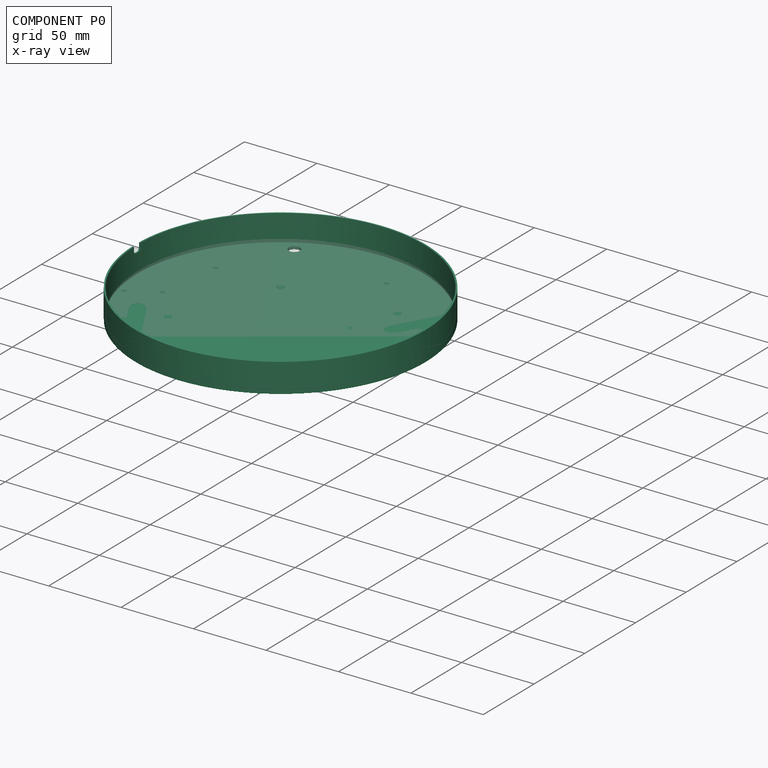
[diagram: component P0 — x-ray view]
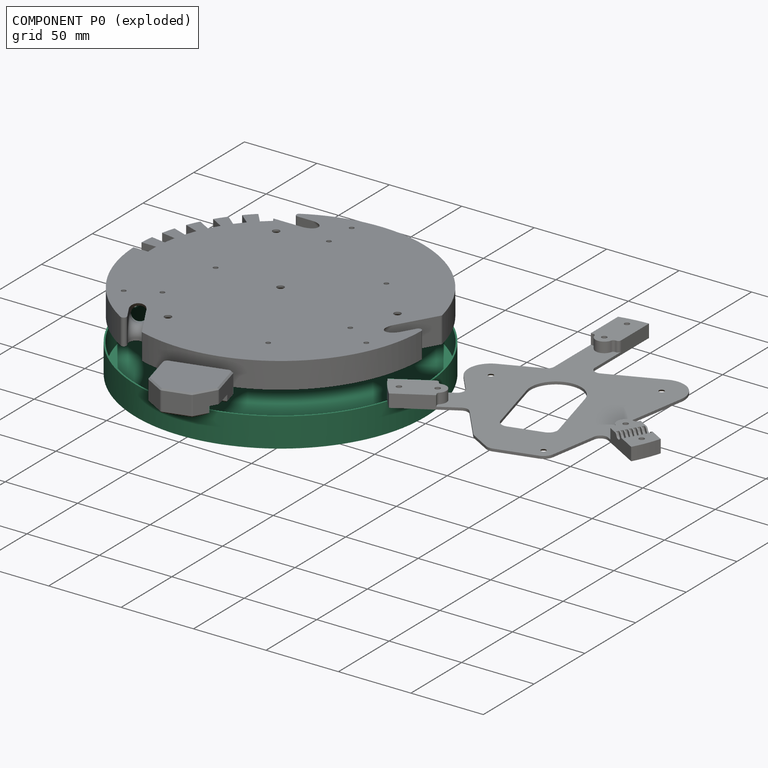
[diagram: component P0 — exploded]
COMPONENT P0 — recipe-attached ("Cover", modeled in this document).
Held by: resting contact with P1 (derived edge); resting contact with P2 (derived edge).
Construction recipe (the document's own serialized feature program — sketch geometry with constraints, then the solid features built on it; lengths are millimeters unless a unit is written):

FEATURE [Sketcher::SketchObject] Sketch026
  ArcFitTolerance = 1e-06
  AttachmentSupport = -> [XY_Plane]
  FullyConstrained = true
  MakeInternals = false
  MapMode = 5
  sketch-geometry (2):
    g0: Circle CenterX=0 CenterY=0 CenterZ=0 NormalX=0 NormalY=0 NormalZ=1 AngleXU=0 Radius=99
    g1: Circle CenterX=0 CenterY=0 CenterZ=0 NormalX=0 NormalY=0 NormalZ=1 AngleXU=0 Radius=100
  constraints (4):
    c: Coincident(g0,g-1)
    c: Coincident(g1,g0)
    c: Diameter(g0) = 198
    c: Diameter(g1) = 200
FEATURE [PartDesign::Pad] Pad014
  Direction = (0,0,1)
  Length = 18.1
  Length2 = 10
  Profile = -> Sketch026
  ReferenceAxis = -> Sketch026 [N_Axis]
  Refine = true
  Reversed = true
  Suppressed = false
  Type = 0
FEATURE [PartDesign::Pad] Pad015
  BaseFeature = -> Pad014
  Direction = (0,0,1)
  Length = 2
  Length2 = 10
  Profile = -> Pad014 [Edge3]
  Refine = true
  Reversed = true
  Suppressed = false
  Type = 0
FEATURE [Sketcher::SketchObject] Sketch029
  ArcFitTolerance = 1e-06
  AttachmentSupport = -> [YZ_Plane]
  FullyConstrained = true
  MakeInternals = false
  MapMode = 5
  Placement = pos=(0,0,0) rot=(0.57735,0.57735,0.57735;2.0944rad)
  sketch-geometry (5):
    g0: ArcOfCircle CenterX=1 CenterY=-3 CenterZ=0 NormalX=0 NormalY=0 NormalZ=1 AngleXU=0 Radius=2 StartAngle=4.71239 EndAngle=6.28319
    g1: LineSegment StartX=1 StartY=-5 StartZ=0 EndX=0 EndY=-5 EndZ=0
    g2: LineSegment StartX=3 StartY=-3 StartZ=0 EndX=3 EndY=0 EndZ=0
    g3: LineSegment StartX=0 StartY=-5 StartZ=0 EndX=0 EndY=0 EndZ=0
    g4: LineSegment StartX=0 StartY=0 StartZ=0 EndX=3 EndY=0 EndZ=0
  constraints (13):
    c: PointOnObject(g1,g-2)
    c: PointOnObject(g2,g-1)
    c: Vertical(g2)
    c: Tangent(g1,g0) = 1.5708
    c: Tangent(g2,g0) = -1.5708
    c: Coincident(g3,g1)
    c: Coincident(g3,g-1)
    c: Coincident(g4,g3)
    c: Coincident(g4,g2)
    c: Horizontal(g1)
    c: DistanceX(g4,g4) = 3
    c: DistanceY(g3,g3) = 5
    c: Diameter(g0) = 4
FEATURE [Sketcher::SketchObject] Sketch033
  ArcFitTolerance = 1e-06
  FullyConstrained = true
  MakeInternals = false
  MapMode = 5
  Placement = pos=(0,0,-18.1) rot=(0,0,1;0rad)
  sketch-geometry (1):
    g0: Circle CenterX=90 CenterY=-1.69e-14 CenterZ=0 NormalX=0 NormalY=0 NormalZ=1 AngleXU=0 Radius=3.9
  constraints (2):
    c: Coincident(g0,g-3)
    c: Distance(g-3,g0) = 0.2
FEATURE [PartDesign::SubShapeBinder] Binder015
  BindCopyOnChange = 0
  BindMode = 0
  ClaimChildren = false
  Context = -> Assembly [Body.Binder015.]
  Fuse = false
  MakeFace = true
  OffsetFill = false
  OffsetIntersection = false
  OffsetJoinType = 0
  OffsetOpenResult = false
  PartialLoad = false
  Refine = true
  Relative = true
  Support = -> [Body003[PolarPattern006.Edge216,PolarPattern006.Edge569]]
  _Version = 2
FEATURE [Sketcher::SketchObject] Sketch027
  ArcFitTolerance = 1e-06
  AttachmentSupport = -> [Pad015]
  ExternalGeometry = -> [Binder015]
  FullyConstrained = true
  MakeInternals = false
  MapMode = 5
  Placement = pos=(0,0,-18.1) rot=(0,0,1;0rad)
  expr: Constraints[0] = VarSet.CordDiameter
  sketch-geometry (1):
    g0: Circle CenterX=90 CenterY=-9.9e-15 CenterZ=0 NormalX=0 NormalY=0 NormalZ=1 AngleXU=0 Radius=3.7
  constraints (2):
    c: Diameter(g0) = 7.4
    c: Coincident(g-3,g0)
FEATURE [PartDesign::Pocket] Pocket050
  BaseFeature = -> Pad015
  Direction = (0,0,-1)
  Length = 0
  Length2 = 5
  Offset = -1
  Profile = -> Binder015 [Edge2]
  Refine = true
  Suppressed = false
  Type = 3
  UpToFace = -> Pad015 [Face1]
FEATURE [PartDesign::Pocket] Pocket045
  BaseFeature = -> Pocket050
  Direction = (0,0,-1)
  Length = 5
  Length2 = 5
  Profile = -> Sketch033
  ReferenceAxis = -> Sketch033 [N_Axis]
  Refine = true
  Suppressed = false
  Type = 1
FEATURE [PartDesign::PolarPattern] PolarPattern005
  Angle = 360
  Axis = -> Sketch033 [N_Axis]
  BaseFeature = -> Pocket045
  Mode = 0
  Occurrences = 3
  Offset = 120
  Originals = -> [Pocket045]
  Refine = true
  Suppressed = false
  TransformMode = 0
FEATURE [PartDesign::Pocket] Pocket031
  BaseFeature = -> PolarPattern005
  Direction = (-1,0,0)
  Length = 5
  Length2 = 5
  Profile = -> Sketch029
  ReferenceAxis = -> Sketch029 [N_Axis]
  Refine = true
  Suppressed = false
  Type = 1
FEATURE [PartDesign::Mirrored] Mirrored
  BaseFeature = -> Pocket031
  MirrorPlane = -> Sketch029 [V_Axis]
  Originals = -> [Pocket031]
  Refine = true
  Suppressed = false
  TransformMode = 0
FEATURE [PartDesign::Body] Body  label="Cover"
  AllowCompound = false
  Group = -> [Sketch026,Pad014,Pad015,Sketch027,Sketch029,Binder015,Sketch033,Pocket050,Pocket045,PolarPattern005,Pocket031,Mirrored]
  Origin = -> Origin
  Tip = -> Mirrored
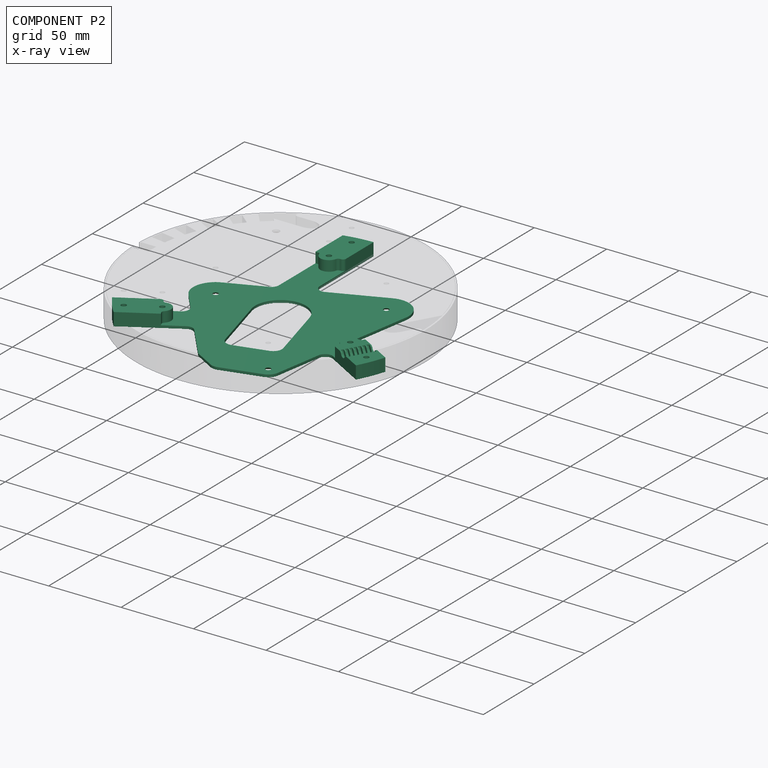
[diagram: component P2 — x-ray view]
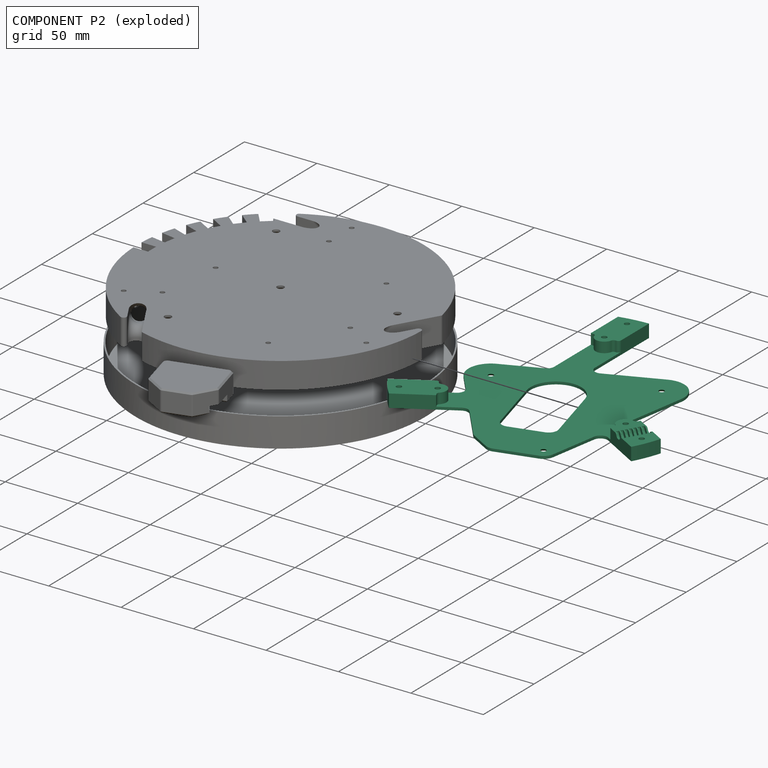
[diagram: component P2 — exploded]
COMPONENT P2 — recipe-attached ("Cord Bracket", modeled in this document).
Held by: resting contact with P0 (derived edge); resting contact with P1 (derived edge); resting contact with P3 (derived edge).
Construction recipe (the document's own serialized feature program — sketch geometry with constraints, then the solid features built on it; lengths are millimeters unless a unit is written):

FEATURE [PartDesign::SubShapeBinder] Binder014
  BindCopyOnChange = 0
  BindMode = 0
  ClaimChildren = false
  Context = -> Assembly [Body005.Binder014.]
  Fuse = false
  MakeFace = true
  OffsetFill = false
  OffsetIntersection = false
  OffsetJoinType = 0
  OffsetOpenResult = false
  PartialLoad = false
  Refine = true
  Relative = true
  Support = -> [Body003[PolarPattern006.Face80,PolarPattern006.Face81,PolarPattern006.Face83,PolarPattern006.Face93,PolarPattern006.Face89,PolarPattern006.Face88,PolarPattern006.Face91,PolarPattern006.Face92]]
  _Version = 2
FEATURE [PartDesign::SubShapeBinder] Binder016
  BindCopyOnChange = 0
  BindMode = 0
  ClaimChildren = false
  Context = -> Assembly [Body005.Binder016.]
  Fuse = false
  MakeFace = true
  Offset = 5
  OffsetFill = false
  OffsetIntersection = false
  OffsetJoinType = 1
  OffsetOpenResult = false
  PartialLoad = false
  Refine = true
  Relative = true
  Support = -> [Housing[Pocket002.Face38]]
  _Version = 2
FEATURE [Sketcher::SketchObject] Sketch047
  ArcFitTolerance = 1e-06
  AttachmentSupport = -> [Binder014]
  ExternalGeometry = -> [Binder014,Binder016]
  FullyConstrained = true
  MakeInternals = false
  MapMode = 5
  Placement = pos=(0,0,-18) rot=(1,0,0;3.14159rad)
  sketch-geometry (19):
    g0: ArcOfCircle CenterX=-45 CenterY=-0.281238 CenterZ=0 NormalX=0 NormalY=0 NormalZ=1 AngleXU=0 Radius=15.5 StartAngle=2.45994 EndAngle=4.31763
    g1: ArcOfCircle CenterX=46.2028 CenterY=-38.2793 CenterZ=0 NormalX=0 NormalY=0 NormalZ=1 AngleXU=0 Radius=15.5 StartAngle=4.31763 EndAngle=6.44728
    g2: LineSegment StartX=-50.9611 StartY=-14.5891 StartZ=0 EndX=40.2417 EndY=-52.5871 EndZ=0
    g3: ArcOfCircle CenterX=37.02 CenterY=65.0561 CenterZ=0 NormalX=0 NormalY=0 NormalZ=1 AngleXU=0 Radius=7.67918 StartAngle=0.16409 EndAngle=1.309
    g4: ArcOfCircle CenterX=10.4659 CenterY=72.5638 CenterZ=0 NormalX=0 NormalY=0 NormalZ=1 AngleXU=0 Radius=7.3 StartAngle=1.309 EndAngle=2.0944
    g5: ArcOfCircle CenterX=-2.55119 CenterY=65.0483 CenterZ=0 NormalX=0 NormalY=0 NormalZ=1 AngleXU=0 Radius=7.3 StartAngle=2.0944 EndAngle=2.45994
    g6: LineSegment StartX=-57.0362 StartY=9.48499 StartZ=0 EndX=-8.21986 EndY=69.6479 EndZ=0
    g7: LineSegment StartX=-6.20119 StartY=71.3703 StartZ=0 EndX=6.81592 EndY=78.8858 EndZ=0
    g8: LineSegment StartX=12.3553 StartY=79.615 StartZ=0 EndX=39.0075 EndY=72.4736 EndZ=0
    g9: LineSegment StartX=44.596 StartY=66.3105 StartZ=0 EndX=61.4946 EndY=-35.7473 EndZ=0
    g10: Circle CenterX=-45 CenterY=-0.281238 CenterZ=0 NormalX=0 NormalY=0 NormalZ=1 AngleXU=0 Radius=1.6
    g11: Circle CenterX=46.2028 CenterY=-38.2793 CenterZ=0 NormalX=0 NormalY=0 NormalZ=1 AngleXU=0 Radius=1.6
    g12: Circle CenterX=37.02 CenterY=65.0561 CenterZ=0 NormalX=0 NormalY=0 NormalZ=1 AngleXU=0 Radius=1.6
    g13: ArcOfCircle CenterX=0 CenterY=0 CenterZ=0 NormalX=0 NormalY=0 NormalZ=1 AngleXU=0 Radius=17.45 StartAngle=2.87979 EndAngle=6.02139
    g14: ArcOfCircle CenterX=0.198775 CenterY=44.9813 CenterZ=0 NormalX=0 NormalY=0 NormalZ=1 AngleXU=0 Radius=6 StartAngle=1.309 EndAngle=2.87979
    g15: ArcOfCircle CenterX=22.3185 CenterY=39.0543 CenterZ=0 NormalX=0 NormalY=0 NormalZ=1 AngleXU=0 Radius=6 StartAngle=6.02139 EndAngle=7.59218
    g16: LineSegment StartX=-5.59678 StartY=46.5342 StartZ=0 EndX=-16.8554 EndY=4.51639 EndZ=0
    g17: LineSegment StartX=16.8554 StartY=-4.51639 StartZ=0 EndX=28.114 EndY=37.5014 EndZ=0
    g18: LineSegment StartX=1.75169 StartY=50.7768 StartZ=0 EndX=23.8714 EndY=44.8499 EndZ=0
  constraints (40):
    c: Coincident(g0,g-3)
    c: PointOnObject(g0,g-3)
    c: Coincident(g1,g-4)
    c: Equal(g1,g-4)
    c: Coincident(g3,g-14)
    c: Coincident(g4,g-12)
    c: Coincident(g5,g-13)
    c: Tangent(g2,g1) = -1.5708
    c: Tangent(g2,g0) = -1.5708
    c: Tangent(g6,g0) = 1.5708
    c: Tangent(g8,g4) = 1.5708
    c: Tangent(g9,g3) = 1.5708
    c: Tangent(g6,g5) = 1.5708
    c: Tangent(g7,g5) = 1.5708
    c: Tangent(g4,g7) = 1.5708
    c: Equal(g-12,g4)
    c: Equal(g-13,g5)
    c: Equal(g3,g-11)
    c: Tangent(g9,g1) = 1.5708
    c: Coincident(g8,g3)
    c: Tangent(g-11,g8)
    c: Coincident(g10,g0)
    c: Coincident(g11,g1)
    c: Coincident(g12,g3)
    c: Equal(g-14,g12)
    c: Equal(g-16,g10)
    c: Equal(g-15,g11)
    c: Coincident(g13,g-1)
    c: Coincident(g15,g-18)
    c: Coincident(g14,g-17)
    c: Coincident(g14,g-17)
    c: Coincident(g15,g-18)
    c: Equal(g15,g-18)
    c: Equal(g-17,g14)
    c: Coincident(g16,g14)
    c: Tangent(g17,g15) = -1.5708
    c: Tangent(g16,g13) = -1.5708
    c: Tangent(g17,g13) = -1.5708
    c: Coincident(g18,g14)
    c: Coincident(g18,g15)
FEATURE [PartDesign::Pad] Pad
  Direction = (0,0,-1)
  Length = 10
  Length2 = 10
  Profile = -> Sketch047
  ReferenceAxis = -> Sketch047 [N_Axis]
  Refine = true
  Suppressed = false
  Type = 3
  UpToFace = -> Binder014 [Face4]
FEATURE [Sketcher::SketchObject] Sketch049
  ArcFitTolerance = 1e-06
  AttachmentSupport = -> [Pad]
  ExternalGeometry = -> [Binder014,Pad]
  FullyConstrained = true
  MakeInternals = false
  MapMode = 5
  Placement = pos=(0,0,-16.2) rot=(0,0,1;0rad)
  sketch-geometry (12):
    g0: LineSegment StartX=-57.5843 StartY=-36.1456 StartZ=0 EndX=-45.8523 EndY=-52.4661 EndZ=0
    g1: LineSegment StartX=68.3631 StartY=-13.4762 StartZ=0 EndX=60.0952 EndY=-31.7967 EndZ=0
    g2: LineSegment StartX=-22.5109 StartY=65.9423 StartZ=0 EndX=-2.51087 EndY=67.9423 EndZ=0
    g3: LineSegment StartX=-2.51087 StartY=67.9423 StartZ=0 EndX=-2.51087 EndY=34.775 EndZ=0
    g4: LineSegment StartX=-22.5109 StartY=65.9423 StartZ=0 EndX=-22.5109 EndY=26.4424 EndZ=0
    g5: LineSegment StartX=-22.5109 StartY=26.4424 StartZ=0 EndX=-2.51087 EndY=34.775 EndZ=0
    g6: LineSegment StartX=-45.8523 StartY=-52.4661 StartZ=0 EndX=-29.719 EndY=-43.1516 EndZ=0
    g7: LineSegment StartX=-57.5843 StartY=-36.1456 StartZ=0 EndX=-42.4797 EndY=-27.425 EndZ=0
    g8: LineSegment StartX=60.0952 StartY=-31.7967 StartZ=0 EndX=51.1645 EndY=-26.6405 EndZ=0
    g9: LineSegment StartX=51.1645 StartY=-26.6405 StartZ=0 EndX=54.6547 EndY=-5.56161 EndZ=0
    g10: LineSegment StartX=-42.4797 StartY=-27.425 StartZ=0 EndX=-29.719 EndY=-43.1516 EndZ=0
    g11: LineSegment StartX=54.6547 StartY=-5.56161 StartZ=0 EndX=68.3631 EndY=-13.4762 EndZ=0
  constraints (28):
    c: Coincident(g0,g-10)
    c: Coincident(g0,g-11)
    c: Coincident(g1,g-9)
    c: Coincident(g1,g-8)
    c: Coincident(g2,g-3)
    c: Coincident(g2,g-4)
    c: PointOnObject(g4,g2)
    c: PointOnObject(g4,g-5)
    c: Coincident(g5,g4)
    c: Coincident(g5,g3)
    c: Coincident(g6,g0)
    c: PointOnObject(g6,g-6)
    c: PointOnObject(g7,g-6)
    c: Coincident(g8,g1)
    c: PointOnObject(g8,g-7)
    c: Coincident(g9,g8)
    c: Tangent(g8,g-8)
    c: Tangent(g7,g-10) = 1.5708
    c: Tangent(g-11,g6)
    c: Tangent(g-3,g4)
    c: Tangent(g3,g-4) = 1.5708
    c: Coincident(g10,g7)
    c: Coincident(g10,g6)
    c: Coincident(g11,g9)
    c: Coincident(g11,g1)
    c: Tangent(g11,g-9)
    c: PointOnObject(g9,g-7)
    c: PointOnObject(g3,g-5)
FEATURE [PartDesign::SubShapeBinder] Binder018
  BindCopyOnChange = 0
  BindMode = 0
  ClaimChildren = false
  Context = -> Assembly [Part.Body005.Binder018.]
  Fuse = false
  MakeFace = true
  OffsetFill = false
  OffsetIntersection = false
  OffsetJoinType = 0
  OffsetOpenResult = false
  PartialLoad = false
  Refine = true
  Relative = true
  Support = -> [Body003[PolarPattern006.Face81,PolarPattern006.Face91,PolarPattern006.Face88,PolarPattern006.Face64,PolarPattern006.Face92,PolarPattern006.Face80,PolarPattern006.Face61,PolarPattern006.Face89]]
  _Version = 2
FEATURE [PartDesign::SubShapeBinder] Binder019
  BindCopyOnChange = 0
  BindMode = 0
  ClaimChildren = false
  Context = -> Assembly [Part.Body005.Binder019.]
  Fuse = false
  MakeFace = true
  OffsetFill = false
  OffsetIntersection = false
  OffsetJoinType = 0
  OffsetOpenResult = false
  PartialLoad = false
  Refine = true
  Relative = true
  Support = -> [Binder018[Edge60,Edge59,Edge58,Edge57,Edge56,Edge55,Edge53,Edge54]]
  _Version = 2
FEATURE [PartDesign::Pad] Pad030
  BaseFeature = -> Pad
  Direction = (0,0,1)
  Length = 10
  Length2 = 10
  Profile = -> Sketch049
  ReferenceAxis = -> Sketch049 [N_Axis]
  Refine = true
  Suppressed = false
  Type = 3
  UpToFace = -> Pad [Face2]
FEATURE [PartDesign::Pad] Pad026
  BaseFeature = -> Pad030
  Direction = (0,0,1)
  Length = 10
  Length2 = 10
  Profile = -> Binder019 [Face2,Face3,Face1]
  Refine = true
  Suppressed = false
  Type = 3
  UpToFace = -> Pad030 [Face23]
FEATURE [PartDesign::Pad] Pad027
  BaseFeature = -> Pad026
  Direction = (1e-16,1,0)
  Length = 10
  Length2 = 10
  Offset = -0.4
  Profile = -> Pad026 [Face47]
  Refine = true
  Suppressed = false
  Type = 3
  UpToFace = -> Binder018 [Face2]
FEATURE [PartDesign::Pad] Pad028
  BaseFeature = -> Pad027
  Direction = (0.866025,-0.5,0)
  Length = 10
  Length2 = 10
  Offset = -0.4
  Profile = -> Pad027 [Face12]
  Refine = true
  Suppressed = false
  Type = 3
  UpToFace = -> Binder018 [Face3]
FEATURE [PartDesign::Pad] Pad029
  BaseFeature = -> Pad028
  Direction = (-0.866025,-0.5,0)
  Length = 10
  Length2 = 10
  Offset = -0.4
  Profile = -> Pad028 [Face19]
  Refine = true
  Suppressed = false
  Type = 3
  UpToFace = -> Binder018 [Face1]
FEATURE [PartDesign::Pocket] Pocket051
  BaseFeature = -> Pad029
  Direction = (-0.630079,0.776531,0)
  Length = 0.4
  Length2 = 5
  Profile = -> Pad029 [Face52]
  ReferenceAxis = -> Pad029 [Edge95]
  Refine = true
  Suppressed = false
  Type = 0
FEATURE [PartDesign::Pocket] Pocket052
  BaseFeature = -> Pocket051
  Direction = (0.776531,0.630079,0)
  Length = 5
  Length2 = 5
  Profile = -> Pocket051 [Face55]
  Refine = true
  Suppressed = false
  Type = 0
FEATURE [PartDesign::Pocket] Pocket053
  BaseFeature = -> Pocket052
  Direction = (-0.163354,-0.986567,0)
  Length = 0.4
  Length2 = 5
  Profile = -> Pocket052 [Face16]
  ReferenceAxis = -> Pocket052 [Edge20]
  Refine = true
  Suppressed = false
  Type = 0
FEATURE [PartDesign::Pocket] Pocket054
  BaseFeature = -> Pocket053
  Direction = (-0.986567,0.163354,0)
  Length = 5
  Length2 = 5
  Profile = -> Pocket053 [Face55]
  Refine = true
  Suppressed = false
  Type = 0
FEATURE [PartDesign::Pocket] Pocket055
  BaseFeature = -> Pocket054
  Direction = (-0.923088,-0.384588,0)
  Length = 0.4
  Length2 = 5
  Profile = -> Pocket054 [Face22]
  ReferenceAxis = -> Pocket054 [Edge26]
  Refine = true
  Reversed = true
  Suppressed = false
  Type = 0
FEATURE [PartDesign::Pocket] Pocket056
  BaseFeature = -> Pocket055
  Direction = (0.384588,-0.923088,0)
  Length = 5
  Length2 = 5
  Profile = -> Pocket055 [Face58]
  Refine = true
  Suppressed = false
  Type = 0
FEATURE [PartDesign::Pocket] Pocket057
  BaseFeature = -> Pocket056
  Direction = (0,0,-1)
  Length = 5
  Length2 = 5
  Profile = -> Binder018 [Edge92,Edge87,Edge62,Edge52,Edge67,Edge77]
  Refine = true
  Suppressed = false
  Type = 1
FEATURE [PartDesign::Hole] Hole007
  BaseFeature = -> Pocket057
  CustomThreadClearance = 0
  Depth = 25
  DepthType = 0
  Diameter = 3.6
  DrillForDepth = false
  DrillPoint = 1
  DrillPointAngle = 118
  HoleCutCountersinkAngle = 90
  HoleCutCustomValues = false
  HoleCutDepth = 0
  HoleCutDiameter = 7
  HoleCutType = 2
  ModelThread = false
  Profile = -> Pocket057 [Edge31,Edge32,Edge39,Edge41,Edge42,Edge40,Edge30,Edge28,Edge29]
  Refine = true
  Reversed = true
  Suppressed = false
  Tapered = false
  TaperedAngle = 90
  ThreadClass = 0
  ThreadDepth = 25
  ThreadDepthType = 0
  ThreadDirection = 0
  ThreadFit = 2
  ThreadSize = 9
  ThreadType = 1
  Threaded = false
  UseCustomThreadClearance = false
FEATURE [PartDesign::Fillet] Fillet002
  Base = -> Hole007 [Edge101,Edge114,Edge122,Edge2,Edge113,Edge95]
  BaseFeature = -> Hole007
  Radius = 5
  Refine = true
  SupportTransform = false
  Suppressed = false
  UseAllEdges = false
FEATURE [PartDesign::SubShapeBinder] Binder020
  BindCopyOnChange = 0
  BindMode = 0
  ClaimChildren = false
  Context = -> Assembly [Part.Body005.Binder020.]
  Fuse = false
  MakeFace = true
  OffsetFill = false
  OffsetIntersection = false
  OffsetJoinType = 0
  OffsetOpenResult = false
  PartialLoad = false
  Refine = true
  Relative = true
  Support = -> [Body003[PolarPattern006.Edge437,PolarPattern006.Edge438]]
  _Version = 2
FEATURE [Sketcher::SketchObject] Sketch050
  ArcFitTolerance = 1e-06
  AttachmentSupport = -> [Fillet002]
  ExternalGeometry = -> [Binder020,Fillet002]
  FullyConstrained = true
  MakeInternals = false
  MapMode = 5
  Placement = pos=(1.25544,2.17448,-2.2e-15) rot=(0.935113,-0.250563,-0.250563;1.63783rad)
  sketch-geometry (1):
    g0: Circle CenterX=77.9423 CenterY=-9 CenterZ=0 NormalX=0 NormalY=0 NormalZ=1 AngleXU=0 Radius=5
  constraints (2):
    c: Coincident(g0,g-4)
    c: Equal(g0,g-3)
FEATURE [PartDesign::Pocket] Pocket058
  BaseFeature = -> Fillet002
  Direction = (0.5,0.866025,0)
  Length = 5
  Length2 = 5
  Profile = -> Sketch050 [Edge1]
  ReferenceAxis = -> Sketch050 [N_Axis]
  Refine = true
  Suppressed = false
  Type = 1
FEATURE [Sketcher::SketchObject] Sketch051
  ArcFitTolerance = 1e-06
  AttachmentSupport = -> [Pocket058]
  ExternalGeometry = -> [Pocket058]
  FullyConstrained = true
  MakeInternals = false
  MapMode = 5
  Placement = pos=(1.25544,2.17448,-2.2e-15) rot=(0.935113,-0.250563,-0.250563;1.63783rad)
  expr: Constraints[3] = VarSet.CordDiameter - 2 mm
  sketch-geometry (4):
    g0: ArcOfCircle CenterX=77.9423 CenterY=-9 CenterZ=0 NormalX=0 NormalY=0 NormalZ=1 AngleXU=0 Radius=5 StartAngle=3.14159 EndAngle=6.28319
    g1: LineSegment StartX=72.9423 StartY=-9 StartZ=0 EndX=75.2423 EndY=-9 EndZ=0
    g2: ArcOfCircle CenterX=77.9423 CenterY=-9 CenterZ=0 NormalX=0 NormalY=0 NormalZ=1 AngleXU=0 Radius=2.7 StartAngle=3.14159 EndAngle=6.28319
    g3: LineSegment StartX=80.6423 StartY=-9 StartZ=0 EndX=82.9423 EndY=-9 EndZ=0
  constraints (11):
    c: Coincident(g0,g-3)
    c: Coincident(g1,g0)
    c: Coincident(g2,g1)
    c: Diameter(g2) = 5.4
    c: Coincident(g0,g-3)
    c: Equal(g0,g-3)
    c: Coincident(g3,g2)
    c: Coincident(g3,g0)
    c: Coincident(g2,g0)
    c: Tangent(g-4,g1)
    c: Tangent(g3,g-5)
FEATURE [PartDesign::Pad] Pad031
  BaseFeature = -> Pocket058
  Direction = (-0.5,-0.866025,-2e-16)
  Length = 1
  Length2 = 10
  Profile = -> Sketch051
  ReferenceAxis = -> Pocket058 [Edge222]
  Refine = true
  Reversed = true
  Suppressed = false
  Type = 0
FEATURE [PartDesign::Fillet] Fillet003
  Base = -> Pad031 [Edge231,Edge232]
  BaseFeature = -> Pad031
  Radius = 2
  Refine = true
  SupportTransform = false
  Suppressed = false
  UseAllEdges = false
FEATURE [PartDesign::LinearPattern] LinearPattern001
  BaseFeature = -> Fillet003
  Direction = -> Fillet003 [Edge15]
  Length = 18.6
  Mode = 0
  Occurrences = 8
  Offset = 2.65714
  Originals = -> [Pad031,Fillet003]
  Refine = true
  Reversed = true
  Suppressed = false
  TransformMode = 0
FEATURE [PartDesign::Body] Body005  label="Cord Bracket"
  AllowCompound = false
  Group = -> [Binder014,Binder016,Sketch047,Pad,Sketch049,Pad030,Binder018,Binder019,Pad026,Pad027,Pad028,Pad029,Pocket051,Pocket052,Pocket053,Pocket054,Pocket055,Pocket056,Pocket057,Hole007,Fillet002,Binder020,Sketch050,Pocket058,Sketch051,Pad031,Fillet003,LinearPattern001]
  Origin = -> Origin006
  Tip = -> LinearPattern001
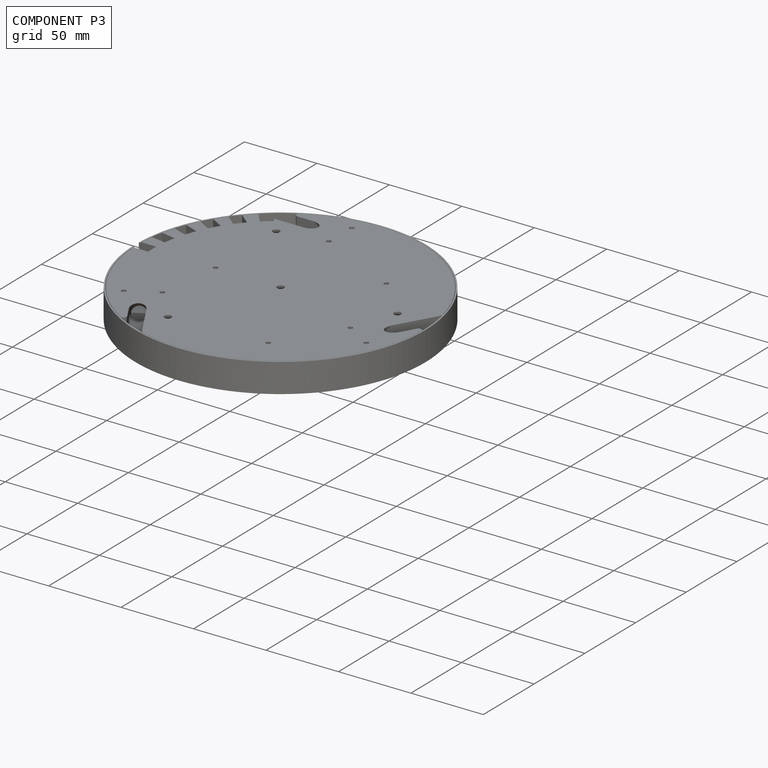
[diagram: component P3 — assembled]
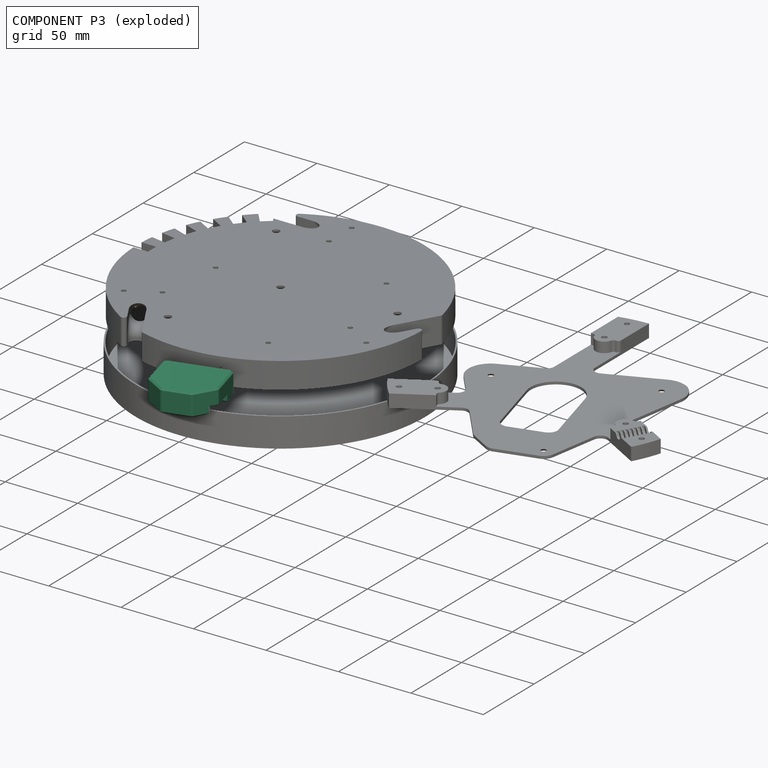
[diagram: component P3 — exploded]
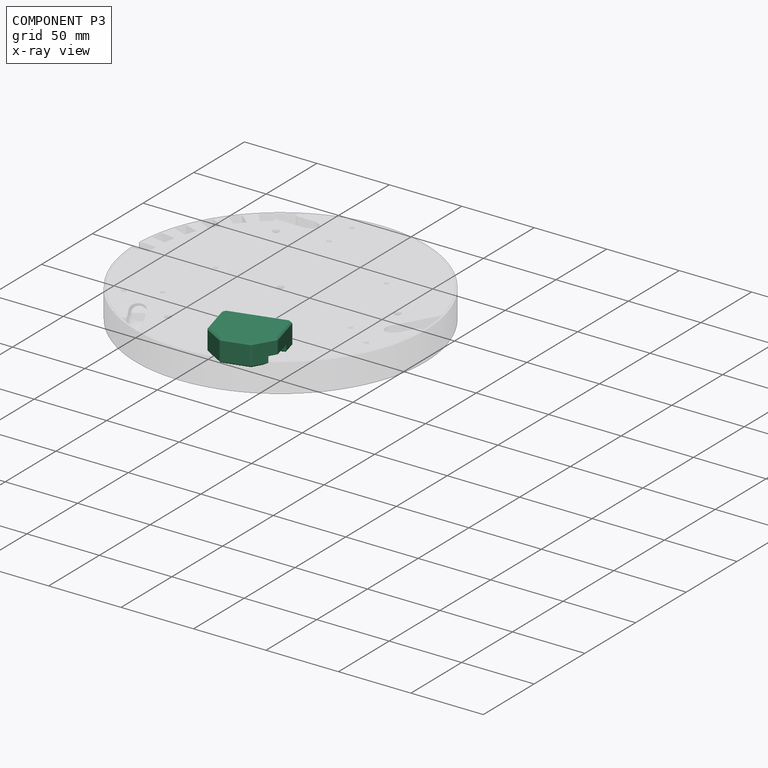
[diagram: component P3 — x-ray view]
COMPONENT P3 — same part as P0; its construction recipe is shown at P0.
Held by: resting contact with P1 (derived edge); resting contact with P2 (derived edge).
PROVENANCE & LICENSES
Assembly and component geometry: a FreeCAD (.FCStd) document from a public repository crawl; components, placements and joints were extracted with FreeCAD and each solid tessellated.
Construction recipes: the document's own serialized feature recipes (and, for linked parts, the recipes of companion documents from the same project).
License: as declared in the source repository (recorded in the dataset sidecar).
Joints: native FreeCAD joints and A2plus constraints are mapped to standard mate types; edges marked 'derived from contact' connect touching components and are measured from the geometry, not modeled.
Verification: 4 of this assembly's 4 components carry a construction recipe (4 from this document itself); the rest are geometry-only. Every component's tessellation passed the extraction mesh gates (mesh-volume checksum against the B-rep where available, bounding-box inflation <= 2%).
Renders: orthographic iso camera (az 35 / el 25); the floor grid conveys scale (grid pitch printed in each image; no ruler). In the exploded view each component is displaced by its stored offset vector: the offsets alone carry the explosion direction (mate normal/axis signs are not orientation cues and do not encode it), and separation distances are assigned per mate-chain, not proportionally to assembly-order depth.
